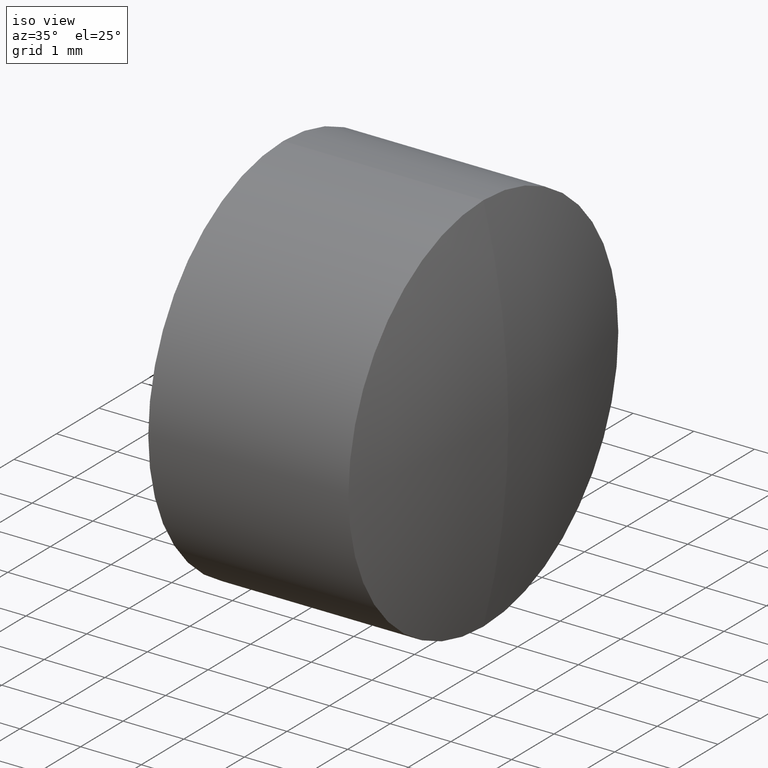
[diagram: clean part render]
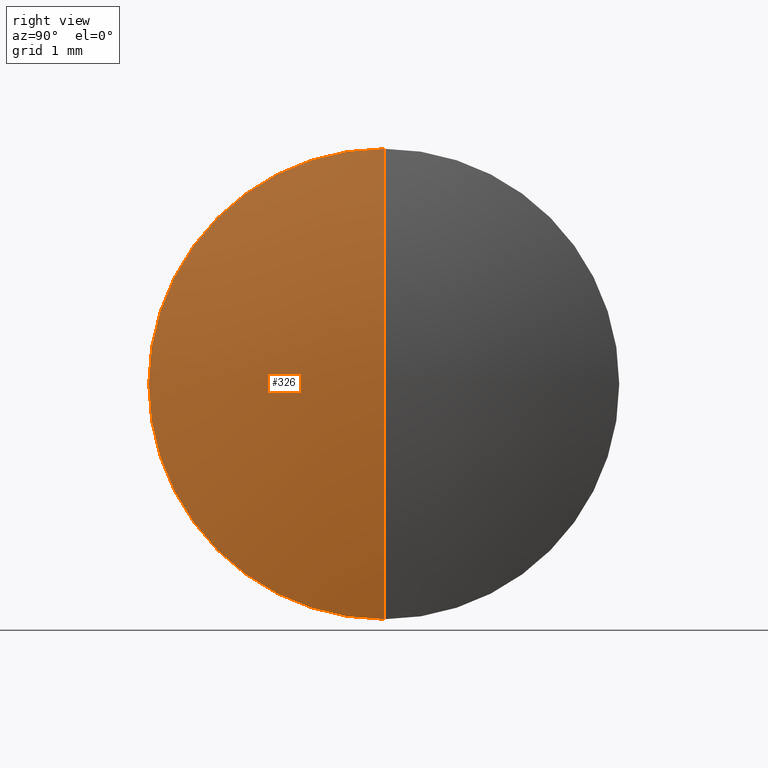
[diagram: tour spotlight — one face highlighted and labeled with its STEP entity id]
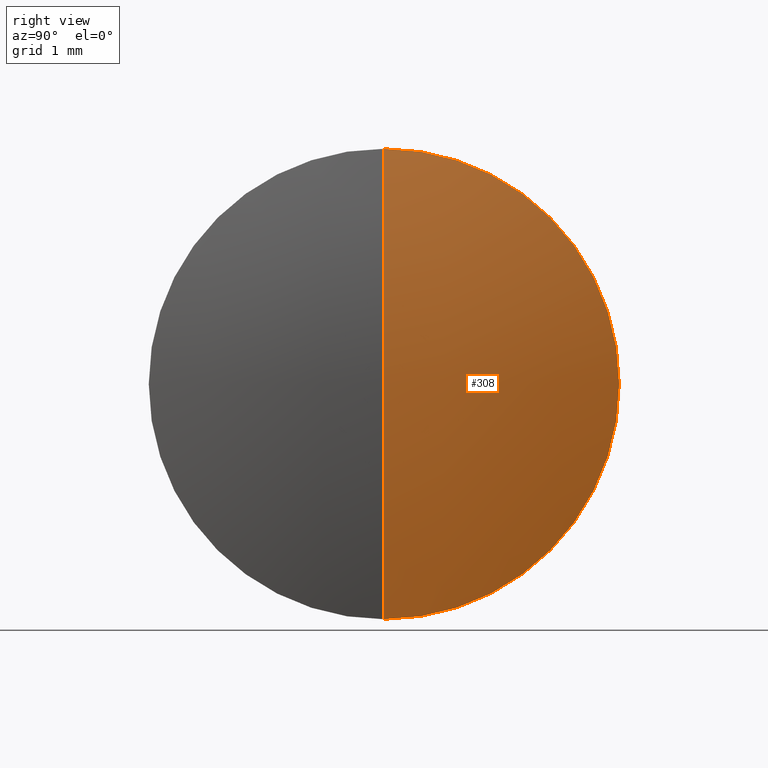
[diagram: tour spotlight — one face highlighted and labeled with its STEP entity id]
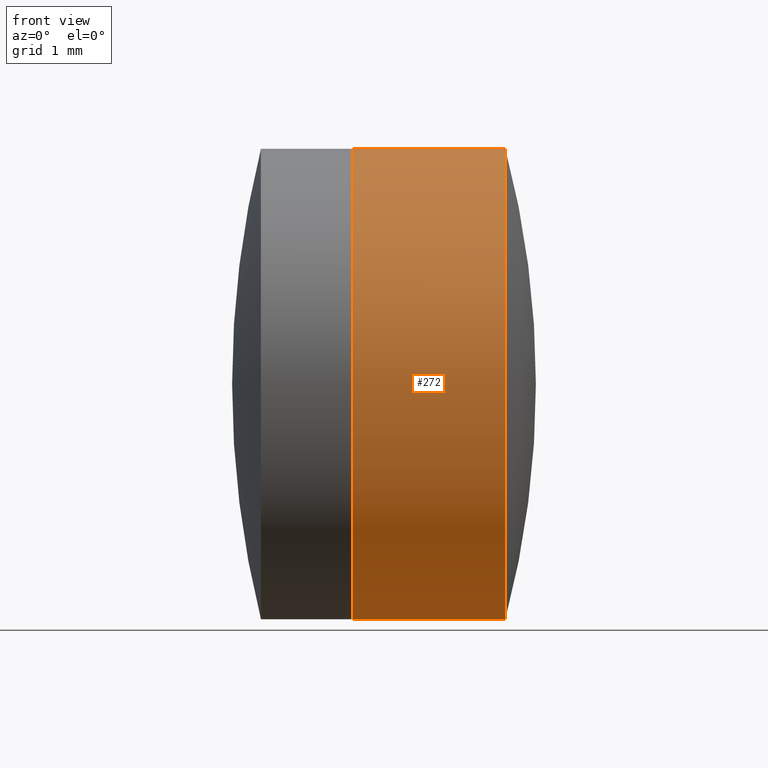
[diagram: tour spotlight — one face highlighted and labeled with its STEP entity id]
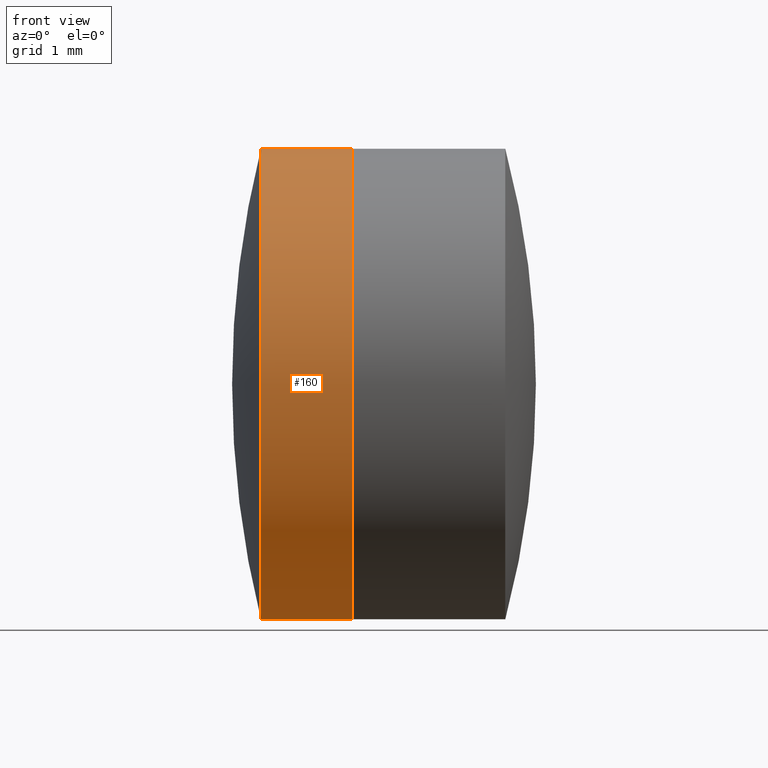
[diagram: tour spotlight — one face highlighted and labeled with its STEP entity id]
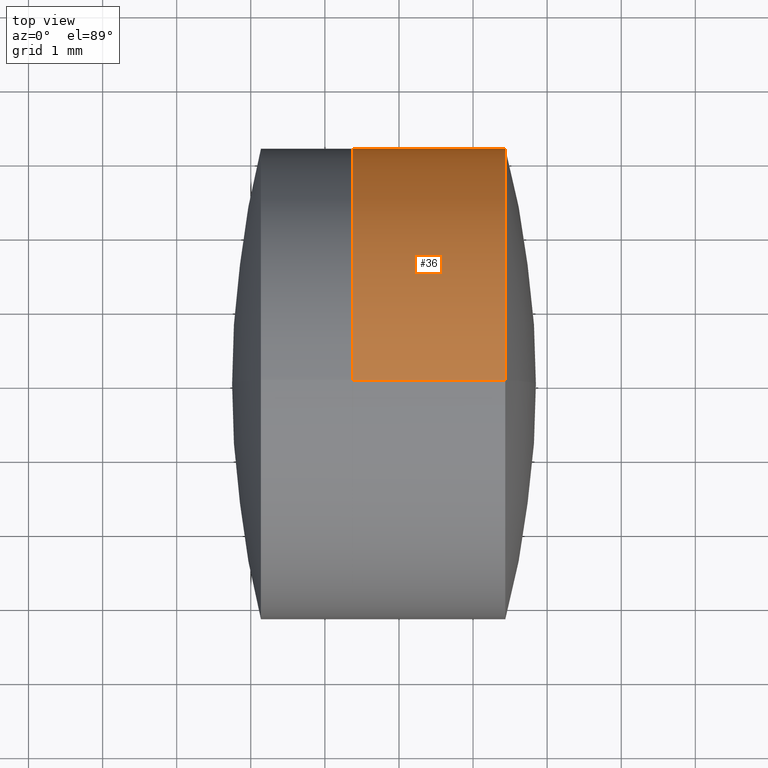
[diagram: tour spotlight — one face highlighted and labeled with its STEP entity id]
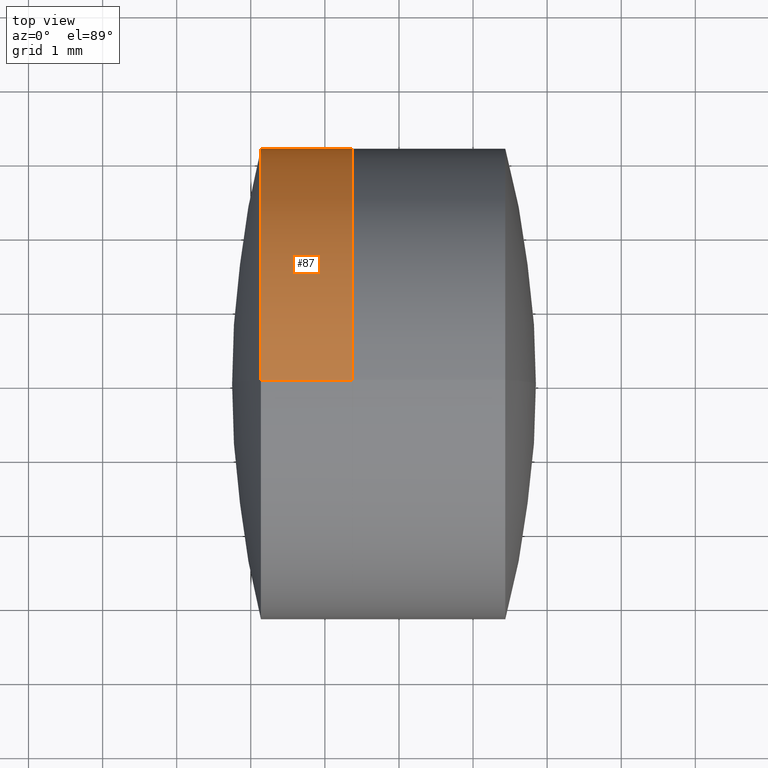
[diagram: tour spotlight — one face highlighted and labeled with its STEP entity id]
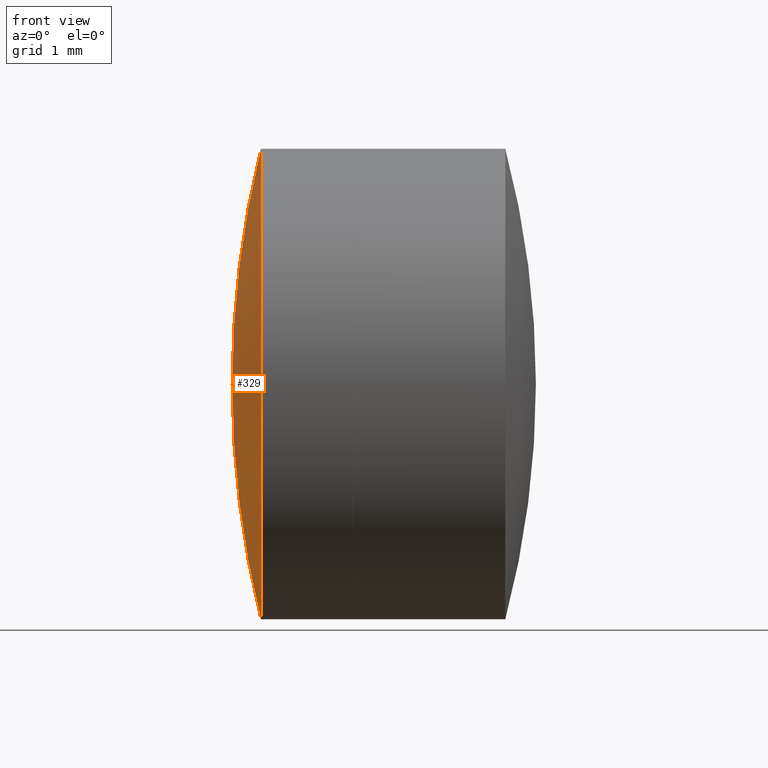
[diagram: tour spotlight — one face highlighted and labeled with its STEP entity id]
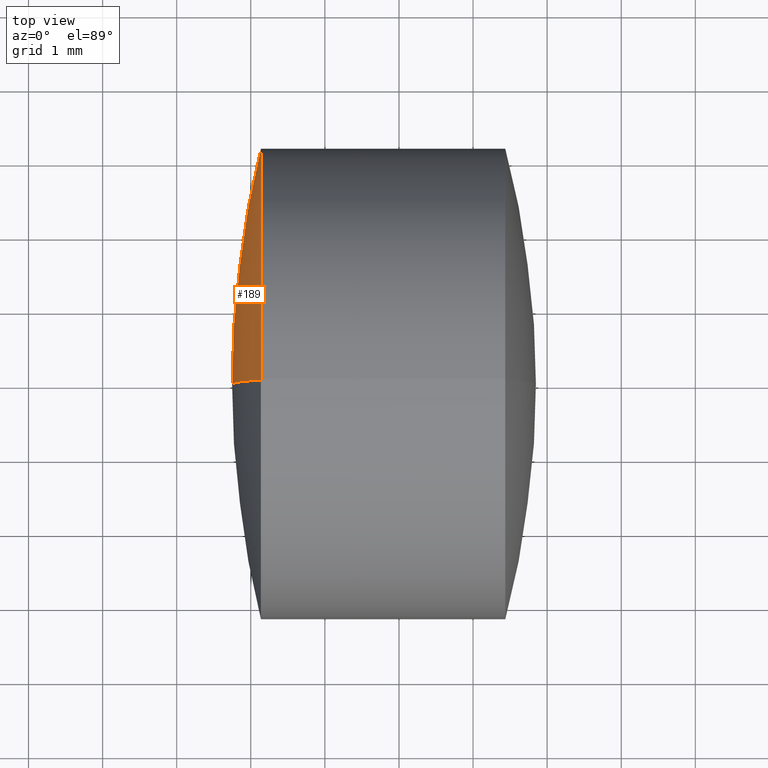
[diagram: tour spotlight — one face highlighted and labeled with its STEP entity id]
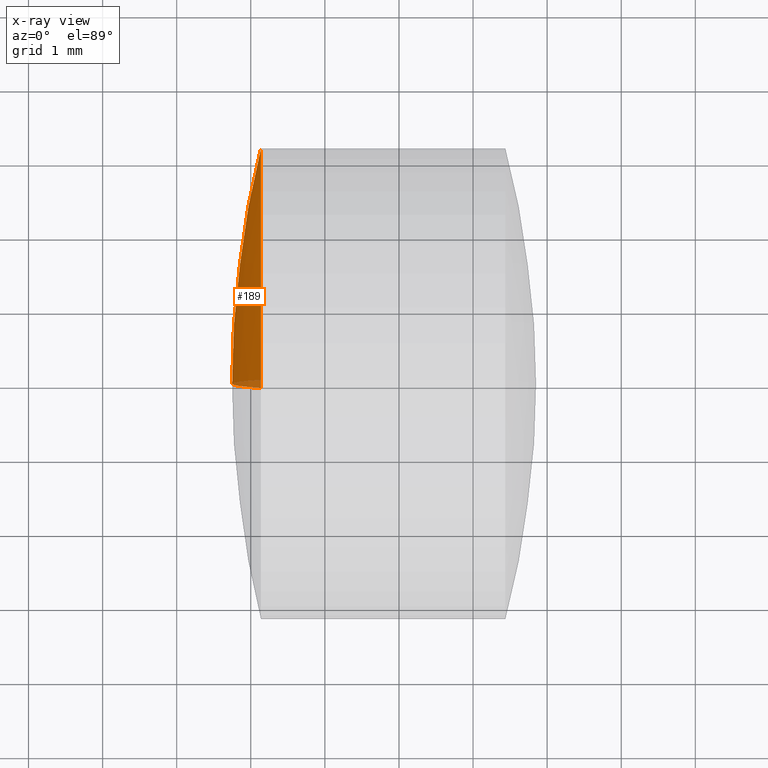
[diagram: x-ray of the same camera — body ghosted, this tour face saturated]
A machine part: a face-by-face anatomy tour. The part has 12 B-rep faces; the first image is the clean iso view, then the 8 largest visible faces are spotlighted one at a time (largest first), each with its STEP entity span.

Face 1 — right view, entity #326. In plain terms, the highlighted spherical surface has radius 12.42 mm.
Definition (entity closure, byte-faithful):
#4 = DIRECTION ( 'NONE',  ( 0.0000000000000000000, 1.224646799147353200E-016, -1.000000000000000000 ) ) ;
#27 = EDGE_CURVE ( 'NONE', #258, #110, #319, .T. ) ;
#31 = CARTESIAN_POINT ( 'NONE',  ( -7.572040515916890900, 0.0000000000000000000, 0.0000000000000000000 ) ) ;
#64 = ORIENTED_EDGE ( 'NONE', *, *, #27, .T. ) ;
#69 = CARTESIAN_POINT ( 'NONE',  ( -7.572040515916890900, 0.0000000000000000000, 0.0000000000000000000 ) ) ;
#79 = ORIENTED_EDGE ( 'NONE', *, *, #134, .F. ) ;
#82 = AXIS2_PLACEMENT_3D ( 'NONE', #31, #210, #4 ) ;
#86 = CARTESIAN_POINT ( 'NONE',  ( 4.435281208764261700, 0.0000000000000000000, -3.175000000000001600 ) ) ;
#100 = CARTESIAN_POINT ( 'NONE',  ( 4.435281208764261700, 0.0000000000000000000, 0.0000000000000000000 ) ) ;
#102 = CIRCLE ( 'NONE', #282, 12.42000000000000000 ) ;
#108 = DIRECTION ( 'NONE',  ( -0.0000000000000000000, -1.000000000000000000, -0.0000000000000000000 ) ) ;
#110 = VERTEX_POINT ( 'NONE', #190 ) ;
#111 = DIRECTION ( 'NONE',  ( 0.0000000000000000000, 0.0000000000000000000, -1.000000000000000000 ) ) ;
#134 = EDGE_CURVE ( 'NONE', #330, #110, #285, .T. ) ;
#138 = DIRECTION ( 'NONE',  ( 0.0000000000000000000, 1.000000000000000000, -0.0000000000000000000 ) ) ;
#162 = DIRECTION ( 'NONE',  ( -1.000000000000000000, -0.0000000000000000000, -0.0000000000000000000 ) ) ;
#176 = DIRECTION ( 'NONE',  ( 0.0000000000000000000, 0.0000000000000000000, 1.000000000000000000 ) ) ;
#190 = CARTESIAN_POINT ( 'NONE',  ( 4.435281208764261700, -3.888253587292849000E-016, 3.175000000000001600 ) ) ;
#200 = CARTESIAN_POINT ( 'NONE',  ( 4.847959484083109100, 0.0000000000000000000, -7.605056622705063600E-016 ) ) ;
#210 = DIRECTION ( 'NONE',  ( 0.0000000000000000000, -1.000000000000000000, -1.224646799147353200E-016 ) ) ;
#238 = CARTESIAN_POINT ( 'NONE',  ( -7.572040515916890900, 0.0000000000000000000, 0.0000000000000000000 ) ) ;
#246 = DIRECTION ( 'NONE',  ( 0.0000000000000000000, 0.0000000000000000000, 1.000000000000000000 ) ) ;
#258 = VERTEX_POINT ( 'NONE', #200 ) ;
#261 = FACE_OUTER_BOUND ( 'NONE', #345, .T. ) ;
#274 = AXIS2_PLACEMENT_3D ( 'NONE', #238, #108, #111 ) ;
#276 = SPHERICAL_SURFACE ( 'NONE', #274, 12.42000000000000000 ) ;
#282 = AXIS2_PLACEMENT_3D ( 'NONE', #69, #138, #176 ) ;
#285 = CIRCLE ( 'NONE', #325, 3.174999999999998000 ) ;
#292 = EDGE_CURVE ( 'NONE', #258, #330, #102, .T. ) ;
#313 = ORIENTED_EDGE ( 'NONE', *, *, #292, .F. ) ;
#319 = CIRCLE ( 'NONE', #82, 12.42000000000000000 ) ;
#325 = AXIS2_PLACEMENT_3D ( 'NONE', #100, #162, #246 ) ;
#326 = ADVANCED_FACE ( 'NONE', ( #261 ), #276, .T. ) ;
#330 = VERTEX_POINT ( 'NONE', #86 ) ;
#345 = EDGE_LOOP ( 'NONE', ( #313, #64, #79 ) ) ;

Face 2 — right view, entity #308. In plain terms, the highlighted spherical surface has radius 12.42 mm.
Definition (entity closure, byte-faithful):
#1 = DIRECTION ( 'NONE',  ( -1.000000000000000000, -0.0000000000000000000, -0.0000000000000000000 ) ) ;
#4 = DIRECTION ( 'NONE',  ( 0.0000000000000000000, 1.224646799147353200E-016, -1.000000000000000000 ) ) ;
#19 = ORIENTED_EDGE ( 'NONE', *, *, #106, .F. ) ;
#27 = EDGE_CURVE ( 'NONE', #258, #110, #319, .T. ) ;
#31 = CARTESIAN_POINT ( 'NONE',  ( -7.572040515916890900, 0.0000000000000000000, 0.0000000000000000000 ) ) ;
#60 = CARTESIAN_POINT ( 'NONE',  ( 4.435281208764261700, 0.0000000000000000000, 0.0000000000000000000 ) ) ;
#69 = CARTESIAN_POINT ( 'NONE',  ( -7.572040515916890900, 0.0000000000000000000, 0.0000000000000000000 ) ) ;
#82 = AXIS2_PLACEMENT_3D ( 'NONE', #31, #210, #4 ) ;
#84 = ORIENTED_EDGE ( 'NONE', *, *, #27, .F. ) ;
#86 = CARTESIAN_POINT ( 'NONE',  ( 4.435281208764261700, 0.0000000000000000000, -3.175000000000001600 ) ) ;
#102 = CIRCLE ( 'NONE', #282, 12.42000000000000000 ) ;
#106 = EDGE_CURVE ( 'NONE', #110, #330, #300, .T. ) ;
#110 = VERTEX_POINT ( 'NONE', #190 ) ;
#132 = DIRECTION ( 'NONE',  ( 0.0000000000000000000, 0.0000000000000000000, -1.000000000000000000 ) ) ;
#133 = SPHERICAL_SURFACE ( 'NONE', #202, 12.42000000000000000 ) ;
#138 = DIRECTION ( 'NONE',  ( 0.0000000000000000000, 1.000000000000000000, -0.0000000000000000000 ) ) ;
#165 = DIRECTION ( 'NONE',  ( -0.0000000000000000000, -1.000000000000000000, -0.0000000000000000000 ) ) ;
#176 = DIRECTION ( 'NONE',  ( 0.0000000000000000000, 0.0000000000000000000, 1.000000000000000000 ) ) ;
#181 = ORIENTED_EDGE ( 'NONE', *, *, #292, .T. ) ;
#190 = CARTESIAN_POINT ( 'NONE',  ( 4.435281208764261700, -3.888253587292849000E-016, 3.175000000000001600 ) ) ;
#200 = CARTESIAN_POINT ( 'NONE',  ( 4.847959484083109100, 0.0000000000000000000, -7.605056622705063600E-016 ) ) ;
#202 = AXIS2_PLACEMENT_3D ( 'NONE', #307, #165, #132 ) ;
#210 = DIRECTION ( 'NONE',  ( 0.0000000000000000000, -1.000000000000000000, -1.224646799147353200E-016 ) ) ;
#229 = AXIS2_PLACEMENT_3D ( 'NONE', #60, #1, #336 ) ;
#236 = FACE_OUTER_BOUND ( 'NONE', #267, .T. ) ;
#258 = VERTEX_POINT ( 'NONE', #200 ) ;
#267 = EDGE_LOOP ( 'NONE', ( #84, #181, #19 ) ) ;
#282 = AXIS2_PLACEMENT_3D ( 'NONE', #69, #138, #176 ) ;
#292 = EDGE_CURVE ( 'NONE', #258, #330, #102, .T. ) ;
#300 = CIRCLE ( 'NONE', #229, 3.174999999999998000 ) ;
#307 = CARTESIAN_POINT ( 'NONE',  ( -7.572040515916890900, 0.0000000000000000000, 0.0000000000000000000 ) ) ;
#308 = ADVANCED_FACE ( 'NONE', ( #236 ), #133, .T. ) ;
#319 = CIRCLE ( 'NONE', #82, 12.42000000000000000 ) ;
#330 = VERTEX_POINT ( 'NONE', #86 ) ;
#336 = DIRECTION ( 'NONE',  ( 0.0000000000000000000, 0.0000000000000000000, 1.000000000000000000 ) ) ;

Face 3 — front view, entity #272. In plain terms, the highlighted cylindrical surface (partial cylindrical patch) has radius 3.175 mm, axis along (-1, -0, -0).
Definition (entity closure, byte-faithful):
#23 = CYLINDRICAL_SURFACE ( 'NONE', #150, 3.174999999999998000 ) ;
#24 = DIRECTION ( 'NONE',  ( 0.0000000000000000000, 0.0000000000000000000, 1.000000000000000000 ) ) ;
#33 = CARTESIAN_POINT ( 'NONE',  ( -0.5519199926577972300, 3.888253587292844600E-016, -3.174999999999998000 ) ) ;
#39 = CARTESIAN_POINT ( 'NONE',  ( 2.377028588039098900, 0.0000000000000000000, 0.0000000000000000000 ) ) ;
#52 = CIRCLE ( 'NONE', #66, 3.174999999999998500 ) ;
#56 = ORIENTED_EDGE ( 'NONE', *, *, #134, .T. ) ;
#66 = AXIS2_PLACEMENT_3D ( 'NONE', #39, #89, #147 ) ;
#67 = DIRECTION ( 'NONE',  ( -1.000000000000000000, -0.0000000000000000000, -0.0000000000000000000 ) ) ;
#86 = CARTESIAN_POINT ( 'NONE',  ( 4.435281208764261700, 0.0000000000000000000, -3.175000000000001600 ) ) ;
#89 = DIRECTION ( 'NONE',  ( -1.000000000000000000, -0.0000000000000000000, -0.0000000000000000000 ) ) ;
#100 = CARTESIAN_POINT ( 'NONE',  ( 4.435281208764261700, 0.0000000000000000000, 0.0000000000000000000 ) ) ;
#110 = VERTEX_POINT ( 'NONE', #190 ) ;
#112 = VECTOR ( 'NONE', #216, 1000.000000000000000 ) ;
#118 = VERTEX_POINT ( 'NONE', #137 ) ;
#120 = EDGE_LOOP ( 'NONE', ( #266, #56, #148, #225 ) ) ;
#126 = LINE ( 'NONE', #260, #174 ) ;
#134 = EDGE_CURVE ( 'NONE', #330, #110, #285, .T. ) ;
#137 = CARTESIAN_POINT ( 'NONE',  ( 2.377028588039098900, 0.0000000000000000000, -3.174999999999998500 ) ) ;
#140 = EDGE_CURVE ( 'NONE', #330, #118, #273, .T. ) ;
#143 = EDGE_CURVE ( 'NONE', #110, #198, #126, .T. ) ;
#147 = DIRECTION ( 'NONE',  ( 0.0000000000000000000, 0.0000000000000000000, 1.000000000000000000 ) ) ;
#148 = ORIENTED_EDGE ( 'NONE', *, *, #143, .T. ) ;
#150 = AXIS2_PLACEMENT_3D ( 'NONE', #288, #163, #24 ) ;
#162 = DIRECTION ( 'NONE',  ( -1.000000000000000000, -0.0000000000000000000, -0.0000000000000000000 ) ) ;
#163 = DIRECTION ( 'NONE',  ( -1.000000000000000000, -0.0000000000000000000, -0.0000000000000000000 ) ) ;
#174 = VECTOR ( 'NONE', #67, 1000.000000000000000 ) ;
#190 = CARTESIAN_POINT ( 'NONE',  ( 4.435281208764261700, -3.888253587292849000E-016, 3.175000000000001600 ) ) ;
#198 = VERTEX_POINT ( 'NONE', #244 ) ;
#216 = DIRECTION ( 'NONE',  ( -1.000000000000000000, -0.0000000000000000000, -0.0000000000000000000 ) ) ;
#225 = ORIENTED_EDGE ( 'NONE', *, *, #290, .F. ) ;
#227 = FACE_OUTER_BOUND ( 'NONE', #120, .T. ) ;
#244 = CARTESIAN_POINT ( 'NONE',  ( 2.377028588039098900, -3.888253587292845100E-016, 3.174999999999998500 ) ) ;
#246 = DIRECTION ( 'NONE',  ( 0.0000000000000000000, 0.0000000000000000000, 1.000000000000000000 ) ) ;
#260 = CARTESIAN_POINT ( 'NONE',  ( -0.5519199926577972300, 0.0000000000000000000, 3.174999999999998000 ) ) ;
#266 = ORIENTED_EDGE ( 'NONE', *, *, #140, .F. ) ;
#272 = ADVANCED_FACE ( 'NONE', ( #227 ), #23, .T. ) ;
#273 = LINE ( 'NONE', #33, #112 ) ;
#285 = CIRCLE ( 'NONE', #325, 3.174999999999998000 ) ;
#288 = CARTESIAN_POINT ( 'NONE',  ( -0.5519199926577972300, 0.0000000000000000000, 0.0000000000000000000 ) ) ;
#290 = EDGE_CURVE ( 'NONE', #118, #198, #52, .T. ) ;
#325 = AXIS2_PLACEMENT_3D ( 'NONE', #100, #162, #246 ) ;
#330 = VERTEX_POINT ( 'NONE', #86 ) ;

Face 4 — front view, entity #160. In plain terms, the highlighted cylindrical surface (partial cylindrical patch) has radius 3.175 mm, axis along (-1, -0, -0).
Definition (entity closure, byte-faithful):
#13 = DIRECTION ( 'NONE',  ( 0.0000000000000000000, 0.0000000000000000000, 1.000000000000000000 ) ) ;
#20 = EDGE_CURVE ( 'NONE', #328, #230, #121, .T. ) ;
#45 = ORIENTED_EDGE ( 'NONE', *, *, #245, .F. ) ;
#47 = AXIS2_PLACEMENT_3D ( 'NONE', #320, #179, #80 ) ;
#70 = CARTESIAN_POINT ( 'NONE',  ( 2.377028588039097600, 0.0000000000000000000, 3.174999999999999800 ) ) ;
#80 = DIRECTION ( 'NONE',  ( 0.0000000000000000000, 0.0000000000000000000, 1.000000000000000000 ) ) ;
#88 = CARTESIAN_POINT ( 'NONE',  ( 2.377028588039097600, 3.888253587292846100E-016, -3.174999999999999800 ) ) ;
#90 = VECTOR ( 'NONE', #344, 1000.000000000000000 ) ;
#92 = CARTESIAN_POINT ( 'NONE',  ( -0.8160621761658039000, 3.888253587292846100E-016, -3.174999999999999800 ) ) ;
#93 = CARTESIAN_POINT ( 'NONE',  ( 1.137008304801841300, 0.0000000000000000000, 0.0000000000000000000 ) ) ;
#97 = CIRCLE ( 'NONE', #161, 3.174999999999999800 ) ;
#103 = FACE_OUTER_BOUND ( 'NONE', #280, .T. ) ;
#119 = DIRECTION ( 'NONE',  ( -1.000000000000000000, -0.0000000000000000000, -0.0000000000000000000 ) ) ;
#121 = CIRCLE ( 'NONE', #343, 3.174999999999999800 ) ;
#145 = VERTEX_POINT ( 'NONE', #339 ) ;
#151 = CARTESIAN_POINT ( 'NONE',  ( 2.377028588039097600, 0.0000000000000000000, 0.0000000000000000000 ) ) ;
#160 = ADVANCED_FACE ( 'NONE', ( #103 ), #164, .T. ) ;
#161 = AXIS2_PLACEMENT_3D ( 'NONE', #93, #119, #13 ) ;
#164 = CYLINDRICAL_SURFACE ( 'NONE', #47, 3.174999999999999800 ) ;
#172 = CARTESIAN_POINT ( 'NONE',  ( 1.137008304801841600, 3.888253587292847100E-016, -3.175000000000000700 ) ) ;
#179 = DIRECTION ( 'NONE',  ( -1.000000000000000000, -0.0000000000000000000, -0.0000000000000000000 ) ) ;
#188 = DIRECTION ( 'NONE',  ( -1.000000000000000000, -0.0000000000000000000, -0.0000000000000000000 ) ) ;
#206 = DIRECTION ( 'NONE',  ( 0.0000000000000000000, 0.0000000000000000000, 1.000000000000000000 ) ) ;
#207 = VERTEX_POINT ( 'NONE', #172 ) ;
#213 = CARTESIAN_POINT ( 'NONE',  ( -0.8160621761658039000, 0.0000000000000000000, 3.174999999999999800 ) ) ;
#217 = EDGE_CURVE ( 'NONE', #207, #145, #97, .T. ) ;
#223 = DIRECTION ( 'NONE',  ( -1.000000000000000000, -0.0000000000000000000, -0.0000000000000000000 ) ) ;
#230 = VERTEX_POINT ( 'NONE', #70 ) ;
#239 = ORIENTED_EDGE ( 'NONE', *, *, #321, .T. ) ;
#245 = EDGE_CURVE ( 'NONE', #328, #207, #294, .T. ) ;
#247 = ORIENTED_EDGE ( 'NONE', *, *, #20, .T. ) ;
#251 = ORIENTED_EDGE ( 'NONE', *, *, #217, .F. ) ;
#256 = LINE ( 'NONE', #213, #314 ) ;
#280 = EDGE_LOOP ( 'NONE', ( #45, #247, #239, #251 ) ) ;
#294 = LINE ( 'NONE', #92, #90 ) ;
#314 = VECTOR ( 'NONE', #188, 1000.000000000000000 ) ;
#320 = CARTESIAN_POINT ( 'NONE',  ( -0.8160621761658039000, 0.0000000000000000000, 0.0000000000000000000 ) ) ;
#321 = EDGE_CURVE ( 'NONE', #230, #145, #256, .T. ) ;
#328 = VERTEX_POINT ( 'NONE', #88 ) ;
#339 = CARTESIAN_POINT ( 'NONE',  ( 1.137008304801841600, 0.0000000000000000000, 3.175000000000000700 ) ) ;
#343 = AXIS2_PLACEMENT_3D ( 'NONE', #151, #223, #206 ) ;
#344 = DIRECTION ( 'NONE',  ( -1.000000000000000000, -0.0000000000000000000, -0.0000000000000000000 ) ) ;

Face 5 — top view, entity #36. In plain terms, the highlighted cylindrical surface (partial cylindrical patch) has radius 3.175 mm, axis along (-1, -0, -0).
Definition (entity closure, byte-faithful):
#1 = DIRECTION ( 'NONE',  ( -1.000000000000000000, -0.0000000000000000000, -0.0000000000000000000 ) ) ;
#21 = CARTESIAN_POINT ( 'NONE',  ( 2.377028588039098900, 0.0000000000000000000, 0.0000000000000000000 ) ) ;
#33 = CARTESIAN_POINT ( 'NONE',  ( -0.5519199926577972300, 3.888253587292844600E-016, -3.174999999999998000 ) ) ;
#36 = ADVANCED_FACE ( 'NONE', ( #57 ), #182, .T. ) ;
#57 = FACE_OUTER_BOUND ( 'NONE', #215, .T. ) ;
#59 = CARTESIAN_POINT ( 'NONE',  ( -0.5519199926577972300, 0.0000000000000000000, 0.0000000000000000000 ) ) ;
#60 = CARTESIAN_POINT ( 'NONE',  ( 4.435281208764261700, 0.0000000000000000000, 0.0000000000000000000 ) ) ;
#67 = DIRECTION ( 'NONE',  ( -1.000000000000000000, -0.0000000000000000000, -0.0000000000000000000 ) ) ;
#77 = AXIS2_PLACEMENT_3D ( 'NONE', #59, #167, #83 ) ;
#81 = DIRECTION ( 'NONE',  ( 0.0000000000000000000, 0.0000000000000000000, 1.000000000000000000 ) ) ;
#83 = DIRECTION ( 'NONE',  ( 0.0000000000000000000, 0.0000000000000000000, 1.000000000000000000 ) ) ;
#86 = CARTESIAN_POINT ( 'NONE',  ( 4.435281208764261700, 0.0000000000000000000, -3.175000000000001600 ) ) ;
#106 = EDGE_CURVE ( 'NONE', #110, #330, #300, .T. ) ;
#110 = VERTEX_POINT ( 'NONE', #190 ) ;
#112 = VECTOR ( 'NONE', #216, 1000.000000000000000 ) ;
#116 = ORIENTED_EDGE ( 'NONE', *, *, #143, .F. ) ;
#118 = VERTEX_POINT ( 'NONE', #137 ) ;
#126 = LINE ( 'NONE', #260, #174 ) ;
#137 = CARTESIAN_POINT ( 'NONE',  ( 2.377028588039098900, 0.0000000000000000000, -3.174999999999998500 ) ) ;
#140 = EDGE_CURVE ( 'NONE', #330, #118, #273, .T. ) ;
#143 = EDGE_CURVE ( 'NONE', #110, #198, #126, .T. ) ;
#149 = DIRECTION ( 'NONE',  ( -1.000000000000000000, -0.0000000000000000000, -0.0000000000000000000 ) ) ;
#167 = DIRECTION ( 'NONE',  ( -1.000000000000000000, -0.0000000000000000000, -0.0000000000000000000 ) ) ;
#174 = VECTOR ( 'NONE', #67, 1000.000000000000000 ) ;
#182 = CYLINDRICAL_SURFACE ( 'NONE', #77, 3.174999999999998000 ) ;
#190 = CARTESIAN_POINT ( 'NONE',  ( 4.435281208764261700, -3.888253587292849000E-016, 3.175000000000001600 ) ) ;
#191 = ORIENTED_EDGE ( 'NONE', *, *, #106, .T. ) ;
#198 = VERTEX_POINT ( 'NONE', #244 ) ;
#205 = EDGE_CURVE ( 'NONE', #198, #118, #315, .T. ) ;
#211 = ORIENTED_EDGE ( 'NONE', *, *, #140, .T. ) ;
#215 = EDGE_LOOP ( 'NONE', ( #191, #211, #221, #116 ) ) ;
#216 = DIRECTION ( 'NONE',  ( -1.000000000000000000, -0.0000000000000000000, -0.0000000000000000000 ) ) ;
#221 = ORIENTED_EDGE ( 'NONE', *, *, #205, .F. ) ;
#229 = AXIS2_PLACEMENT_3D ( 'NONE', #60, #1, #336 ) ;
#237 = AXIS2_PLACEMENT_3D ( 'NONE', #21, #149, #81 ) ;
#244 = CARTESIAN_POINT ( 'NONE',  ( 2.377028588039098900, -3.888253587292845100E-016, 3.174999999999998500 ) ) ;
#260 = CARTESIAN_POINT ( 'NONE',  ( -0.5519199926577972300, 0.0000000000000000000, 3.174999999999998000 ) ) ;
#273 = LINE ( 'NONE', #33, #112 ) ;
#300 = CIRCLE ( 'NONE', #229, 3.174999999999998000 ) ;
#315 = CIRCLE ( 'NONE', #237, 3.174999999999998500 ) ;
#330 = VERTEX_POINT ( 'NONE', #86 ) ;
#336 = DIRECTION ( 'NONE',  ( 0.0000000000000000000, 0.0000000000000000000, 1.000000000000000000 ) ) ;

Face 6 — top view, entity #87. In plain terms, the highlighted cylindrical surface (partial cylindrical patch) has radius 3.175 mm, axis along (-1, -0, -0).
Definition (entity closure, byte-faithful):
#2 = ORIENTED_EDGE ( 'NONE', *, *, #78, .T. ) ;
#3 = FACE_OUTER_BOUND ( 'NONE', #299, .T. ) ;
#12 = CARTESIAN_POINT ( 'NONE',  ( 2.377028588039097600, 0.0000000000000000000, 0.0000000000000000000 ) ) ;
#29 = AXIS2_PLACEMENT_3D ( 'NONE', #12, #311, #42 ) ;
#37 = DIRECTION ( 'NONE',  ( 0.0000000000000000000, 0.0000000000000000000, 1.000000000000000000 ) ) ;
#41 = CARTESIAN_POINT ( 'NONE',  ( -0.8160621761658039000, 0.0000000000000000000, 0.0000000000000000000 ) ) ;
#42 = DIRECTION ( 'NONE',  ( 0.0000000000000000000, 0.0000000000000000000, 1.000000000000000000 ) ) ;
#58 = EDGE_CURVE ( 'NONE', #145, #207, #192, .T. ) ;
#70 = CARTESIAN_POINT ( 'NONE',  ( 2.377028588039097600, 0.0000000000000000000, 3.174999999999999800 ) ) ;
#71 = ORIENTED_EDGE ( 'NONE', *, *, #58, .F. ) ;
#74 = ORIENTED_EDGE ( 'NONE', *, *, #245, .T. ) ;
#78 = EDGE_CURVE ( 'NONE', #230, #328, #135, .T. ) ;
#87 = ADVANCED_FACE ( 'NONE', ( #3 ), #331, .T. ) ;
#88 = CARTESIAN_POINT ( 'NONE',  ( 2.377028588039097600, 3.888253587292846100E-016, -3.174999999999999800 ) ) ;
#90 = VECTOR ( 'NONE', #344, 1000.000000000000000 ) ;
#92 = CARTESIAN_POINT ( 'NONE',  ( -0.8160621761658039000, 3.888253587292846100E-016, -3.174999999999999800 ) ) ;
#98 = CARTESIAN_POINT ( 'NONE',  ( 1.137008304801841300, 0.0000000000000000000, 0.0000000000000000000 ) ) ;
#114 = DIRECTION ( 'NONE',  ( -1.000000000000000000, -0.0000000000000000000, -0.0000000000000000000 ) ) ;
#135 = CIRCLE ( 'NONE', #29, 3.174999999999999800 ) ;
#142 = ORIENTED_EDGE ( 'NONE', *, *, #321, .F. ) ;
#145 = VERTEX_POINT ( 'NONE', #339 ) ;
#172 = CARTESIAN_POINT ( 'NONE',  ( 1.137008304801841600, 3.888253587292847100E-016, -3.175000000000000700 ) ) ;
#175 = AXIS2_PLACEMENT_3D ( 'NONE', #98, #114, #180 ) ;
#180 = DIRECTION ( 'NONE',  ( 0.0000000000000000000, 0.0000000000000000000, 1.000000000000000000 ) ) ;
#188 = DIRECTION ( 'NONE',  ( -1.000000000000000000, -0.0000000000000000000, -0.0000000000000000000 ) ) ;
#192 = CIRCLE ( 'NONE', #175, 3.174999999999999800 ) ;
#207 = VERTEX_POINT ( 'NONE', #172 ) ;
#213 = CARTESIAN_POINT ( 'NONE',  ( -0.8160621761658039000, 0.0000000000000000000, 3.174999999999999800 ) ) ;
#230 = VERTEX_POINT ( 'NONE', #70 ) ;
#231 = DIRECTION ( 'NONE',  ( -1.000000000000000000, -0.0000000000000000000, -0.0000000000000000000 ) ) ;
#245 = EDGE_CURVE ( 'NONE', #328, #207, #294, .T. ) ;
#256 = LINE ( 'NONE', #213, #314 ) ;
#294 = LINE ( 'NONE', #92, #90 ) ;
#299 = EDGE_LOOP ( 'NONE', ( #2, #74, #71, #142 ) ) ;
#311 = DIRECTION ( 'NONE',  ( -1.000000000000000000, -0.0000000000000000000, -0.0000000000000000000 ) ) ;
#314 = VECTOR ( 'NONE', #188, 1000.000000000000000 ) ;
#321 = EDGE_CURVE ( 'NONE', #230, #145, #256, .T. ) ;
#328 = VERTEX_POINT ( 'NONE', #88 ) ;
#331 = CYLINDRICAL_SURFACE ( 'NONE', #333, 3.174999999999999800 ) ;
#333 = AXIS2_PLACEMENT_3D ( 'NONE', #41, #231, #37 ) ;
#339 = CARTESIAN_POINT ( 'NONE',  ( 1.137008304801841600, 0.0000000000000000000, 3.175000000000000700 ) ) ;
#344 = DIRECTION ( 'NONE',  ( -1.000000000000000000, -0.0000000000000000000, -0.0000000000000000000 ) ) ;

Face 7 — front view, entity #329. In plain terms, the highlighted spherical surface has radius 13.15 mm.
Definition (entity closure, byte-faithful):
#13 = DIRECTION ( 'NONE',  ( 0.0000000000000000000, 0.0000000000000000000, 1.000000000000000000 ) ) ;
#49 = ORIENTED_EDGE ( 'NONE', *, *, #217, .T. ) ;
#93 = CARTESIAN_POINT ( 'NONE',  ( 1.137008304801841300, 0.0000000000000000000, 0.0000000000000000000 ) ) ;
#94 = EDGE_LOOP ( 'NONE', ( #284, #49, #203 ) ) ;
#97 = CIRCLE ( 'NONE', #161, 3.174999999999999800 ) ;
#105 = DIRECTION ( 'NONE',  ( 0.0000000000000000000, 1.000000000000000000, 0.0000000000000000000 ) ) ;
#113 = DIRECTION ( 'NONE',  ( 0.0000000000000000000, 0.0000000000000000000, 1.000000000000000000 ) ) ;
#119 = DIRECTION ( 'NONE',  ( -1.000000000000000000, -0.0000000000000000000, -0.0000000000000000000 ) ) ;
#127 = CARTESIAN_POINT ( 'NONE',  ( 13.89795948408311000, 0.0000000000000000000, -4.034842405312186600E-017 ) ) ;
#145 = VERTEX_POINT ( 'NONE', #339 ) ;
#155 = CIRCLE ( 'NONE', #293, 13.15000000000000000 ) ;
#161 = AXIS2_PLACEMENT_3D ( 'NONE', #93, #119, #13 ) ;
#172 = CARTESIAN_POINT ( 'NONE',  ( 1.137008304801841600, 3.888253587292847100E-016, -3.175000000000000700 ) ) ;
#187 = AXIS2_PLACEMENT_3D ( 'NONE', #240, #105, #113 ) ;
#203 = ORIENTED_EDGE ( 'NONE', *, *, #264, .T. ) ;
#207 = VERTEX_POINT ( 'NONE', #172 ) ;
#217 = EDGE_CURVE ( 'NONE', #207, #145, #97, .T. ) ;
#232 = CARTESIAN_POINT ( 'NONE',  ( 0.7479594840831098600, 0.0000000000000000000, 7.648568463862628500E-016 ) ) ;
#240 = CARTESIAN_POINT ( 'NONE',  ( 13.89795948408311000, 0.0000000000000000000, -4.034842405312186600E-017 ) ) ;
#250 = CARTESIAN_POINT ( 'NONE',  ( 13.89795948408311000, 0.0000000000000000000, -4.034842405312186600E-017 ) ) ;
#264 = EDGE_CURVE ( 'NONE', #145, #340, #155, .T. ) ;
#275 = DIRECTION ( 'NONE',  ( -0.0000000000000000000, 1.000000000000000000, 1.224646799147353200E-016 ) ) ;
#283 = SPHERICAL_SURFACE ( 'NONE', #187, 13.15000000000000000 ) ;
#284 = ORIENTED_EDGE ( 'NONE', *, *, #346, .F. ) ;
#286 = DIRECTION ( 'NONE',  ( 0.0000000000000000000, -1.000000000000000000, 0.0000000000000000000 ) ) ;
#287 = FACE_OUTER_BOUND ( 'NONE', #94, .T. ) ;
#293 = AXIS2_PLACEMENT_3D ( 'NONE', #250, #286, #335 ) ;
#296 = DIRECTION ( 'NONE',  ( 0.0000000000000000000, -1.224646799147353000E-016, 1.000000000000000000 ) ) ;
#317 = CIRCLE ( 'NONE', #338, 13.15000000000000000 ) ;
#329 = ADVANCED_FACE ( 'NONE', ( #287 ), #283, .T. ) ;
#335 = DIRECTION ( 'NONE',  ( 0.0000000000000000000, 0.0000000000000000000, -1.000000000000000000 ) ) ;
#338 = AXIS2_PLACEMENT_3D ( 'NONE', #127, #275, #296 ) ;
#339 = CARTESIAN_POINT ( 'NONE',  ( 1.137008304801841600, 0.0000000000000000000, 3.175000000000000700 ) ) ;
#340 = VERTEX_POINT ( 'NONE', #232 ) ;
#346 = EDGE_CURVE ( 'NONE', #207, #340, #317, .T. ) ;

Face 8 — top view, entity #189. An x-ray twin of the same camera follows (body ghosted, this face saturated) — the face is partly hidden behind the body. In plain terms, the highlighted spherical surface has radius 13.15 mm.
Definition (entity closure, byte-faithful):
#38 = FACE_OUTER_BOUND ( 'NONE', #337, .T. ) ;
#54 = DIRECTION ( 'NONE',  ( 0.0000000000000000000, 0.0000000000000000000, 1.000000000000000000 ) ) ;
#58 = EDGE_CURVE ( 'NONE', #145, #207, #192, .T. ) ;
#73 = DIRECTION ( 'NONE',  ( 0.0000000000000000000, 1.000000000000000000, 0.0000000000000000000 ) ) ;
#98 = CARTESIAN_POINT ( 'NONE',  ( 1.137008304801841300, 0.0000000000000000000, 0.0000000000000000000 ) ) ;
#114 = DIRECTION ( 'NONE',  ( -1.000000000000000000, -0.0000000000000000000, -0.0000000000000000000 ) ) ;
#127 = CARTESIAN_POINT ( 'NONE',  ( 13.89795948408311000, 0.0000000000000000000, -4.034842405312186600E-017 ) ) ;
#145 = VERTEX_POINT ( 'NONE', #339 ) ;
#155 = CIRCLE ( 'NONE', #293, 13.15000000000000000 ) ;
#170 = ORIENTED_EDGE ( 'NONE', *, *, #346, .T. ) ;
#172 = CARTESIAN_POINT ( 'NONE',  ( 1.137008304801841600, 3.888253587292847100E-016, -3.175000000000000700 ) ) ;
#175 = AXIS2_PLACEMENT_3D ( 'NONE', #98, #114, #180 ) ;
#180 = DIRECTION ( 'NONE',  ( 0.0000000000000000000, 0.0000000000000000000, 1.000000000000000000 ) ) ;
#189 = ADVANCED_FACE ( 'NONE', ( #38 ), #233, .T. ) ;
#192 = CIRCLE ( 'NONE', #175, 3.174999999999999800 ) ;
#197 = CARTESIAN_POINT ( 'NONE',  ( 13.89795948408311000, 0.0000000000000000000, -4.034842405312186600E-017 ) ) ;
#207 = VERTEX_POINT ( 'NONE', #172 ) ;
#212 = AXIS2_PLACEMENT_3D ( 'NONE', #197, #73, #54 ) ;
#232 = CARTESIAN_POINT ( 'NONE',  ( 0.7479594840831098600, 0.0000000000000000000, 7.648568463862628500E-016 ) ) ;
#233 = SPHERICAL_SURFACE ( 'NONE', #212, 13.15000000000000000 ) ;
#250 = CARTESIAN_POINT ( 'NONE',  ( 13.89795948408311000, 0.0000000000000000000, -4.034842405312186600E-017 ) ) ;
#264 = EDGE_CURVE ( 'NONE', #145, #340, #155, .T. ) ;
#271 = ORIENTED_EDGE ( 'NONE', *, *, #58, .T. ) ;
#275 = DIRECTION ( 'NONE',  ( -0.0000000000000000000, 1.000000000000000000, 1.224646799147353200E-016 ) ) ;
#286 = DIRECTION ( 'NONE',  ( 0.0000000000000000000, -1.000000000000000000, 0.0000000000000000000 ) ) ;
#293 = AXIS2_PLACEMENT_3D ( 'NONE', #250, #286, #335 ) ;
#296 = DIRECTION ( 'NONE',  ( 0.0000000000000000000, -1.224646799147353000E-016, 1.000000000000000000 ) ) ;
#317 = CIRCLE ( 'NONE', #338, 13.15000000000000000 ) ;
#318 = ORIENTED_EDGE ( 'NONE', *, *, #264, .F. ) ;
#335 = DIRECTION ( 'NONE',  ( 0.0000000000000000000, 0.0000000000000000000, -1.000000000000000000 ) ) ;
#337 = EDGE_LOOP ( 'NONE', ( #271, #170, #318 ) ) ;
#338 = AXIS2_PLACEMENT_3D ( 'NONE', #127, #275, #296 ) ;
#339 = CARTESIAN_POINT ( 'NONE',  ( 1.137008304801841600, 0.0000000000000000000, 3.175000000000000700 ) ) ;
#340 = VERTEX_POINT ( 'NONE', #232 ) ;
#346 = EDGE_CURVE ( 'NONE', #207, #340, #317, .T. ) ;